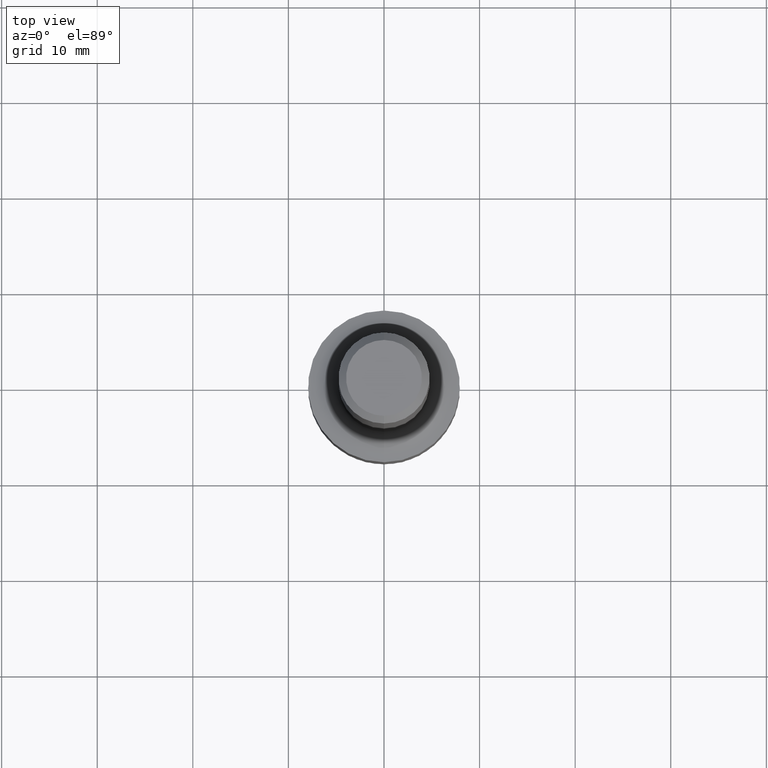
[diagram: clean part render]
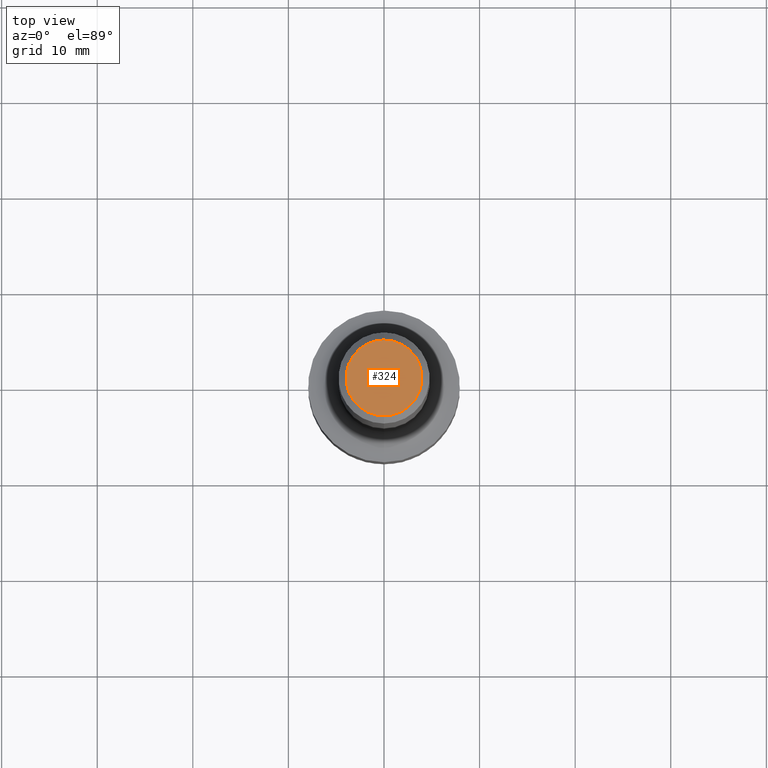
[diagram: same view with one face highlighted and labeled with its STEP entity id]
A machine part, top view. The second image highlights one B-rep face of the part: STEP entity #324.
In plain terms, the highlighted planar face has unit normal (0, -0, -1).
Its self-contained STEP definition (entity closure, byte-faithful):
#13 = EDGE_CURVE ( 'NONE', #203, #107, #328, .T. ) ;
#16 = CARTESIAN_POINT ( 'NONE',  ( -1.179319605816925888E-15, -0.1563000000000000500, 5.620965447596539354E-16 ) ) ;
#46 = ORIENTED_EDGE ( 'NONE', *, *, #13, .T. ) ;
#68 = EDGE_LOOP ( 'NONE', ( #274, #46 ) ) ;
#72 = DIRECTION ( 'NONE',  ( -6.982962677686265922E-15, -1.000000000000000000, 3.519389109168798508E-15 ) ) ;
#107 = VERTEX_POINT ( 'NONE', #282 ) ;
#109 = AXIS2_PLACEMENT_3D ( 'NONE', #401, #209, #357 ) ;
#145 = CARTESIAN_POINT ( 'NONE',  ( -2.915065215969391447E-46, 4.228907454720856931E-32, 1.201602699657052482E-17 ) ) ;
#186 = DIRECTION ( 'NONE',  ( -2.425980914324989080E-29, 3.519389109168798508E-15, 1.000000000000000000 ) ) ;
#203 = VERTEX_POINT ( 'NONE', #16 ) ;
#209 = DIRECTION ( 'NONE',  ( -2.425980914324989080E-29, 3.519389109168798508E-15, 1.000000000000000000 ) ) ;
#217 = CIRCLE ( 'NONE', #474, 0.1563000000000000500 ) ;
#244 = AXIS2_PLACEMENT_3D ( 'NONE', #444, #405, #448 ) ;
#274 = ORIENTED_EDGE ( 'NONE', *, *, #403, .T. ) ;
#282 = CARTESIAN_POINT ( 'NONE',  ( 1.200371284294269833E-15, 0.1563000000000000500, -5.380644907665128611E-16 ) ) ;
#290 = PLANE ( 'NONE',  #244 ) ;
#324 = ADVANCED_FACE ( 'NONE', ( #329 ), #290, .F. ) ;
#328 = CIRCLE ( 'NONE', #109, 0.1563000000000000500 ) ;
#329 = FACE_OUTER_BOUND ( 'NONE', #68, .T. ) ;
#357 = DIRECTION ( 'NONE',  ( -6.982962677686265922E-15, -1.000000000000000000, 3.519389109168798508E-15 ) ) ;
#401 = CARTESIAN_POINT ( 'NONE',  ( -2.915065215969391447E-46, 4.228907454720856931E-32, 1.201602699657052482E-17 ) ) ;
#403 = EDGE_CURVE ( 'NONE', #107, #203, #217, .T. ) ;
#405 = DIRECTION ( 'NONE',  ( 2.425980914324988519E-29, -3.519389109168798902E-15, -1.000000000000000000 ) ) ;
#444 = CARTESIAN_POINT ( 'NONE',  ( 1.091437066522363671E-15, 0.1563000000000000500, -5.440725042647980311E-16 ) ) ;
#448 = DIRECTION ( 'NONE',  ( 6.982962677686265922E-15, 1.000000000000000000, -3.519389109168798902E-15 ) ) ;
#474 = AXIS2_PLACEMENT_3D ( 'NONE', #145, #186, #72 ) ;